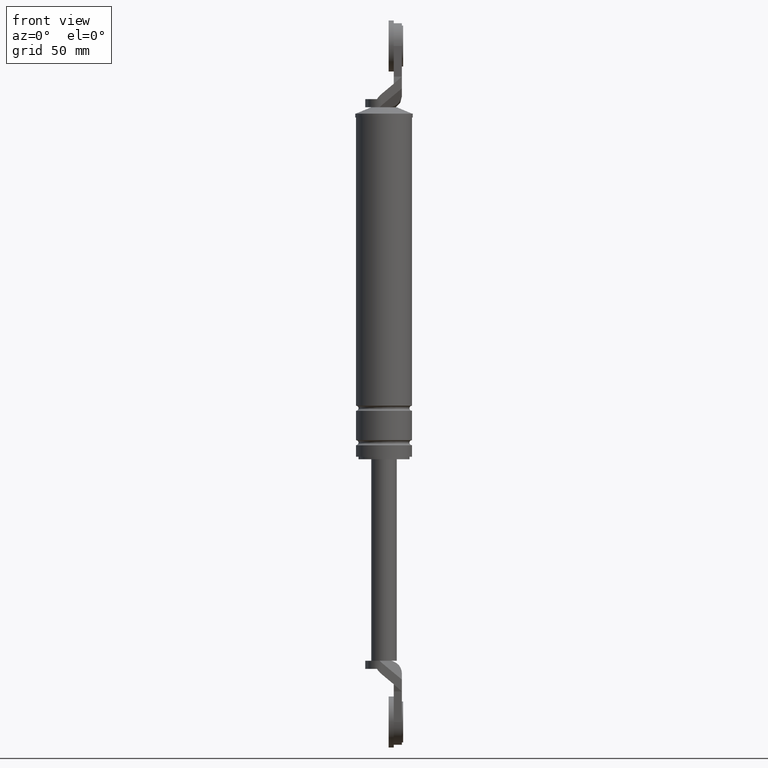
[diagram: clean part render]
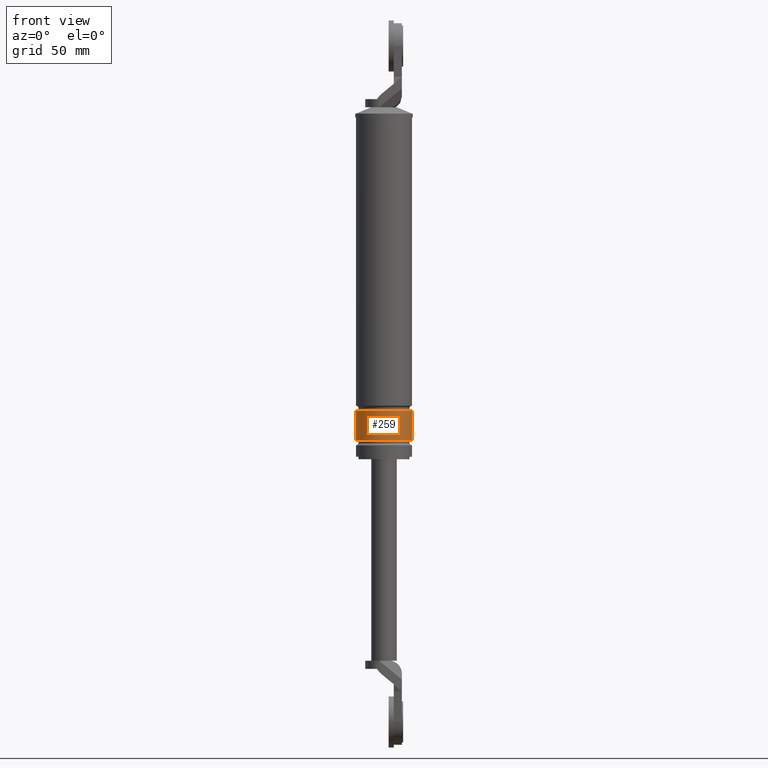
[diagram: same view with one face highlighted and labeled with its STEP entity id]
A machine part, front view. The second image highlights one B-rep face of the part: STEP entity #259.
In plain terms, the highlighted cylindrical surface (edge-blend (fillet) strip) has radius 11 mm, axis along (0, 0, 1).
Its self-contained STEP definition (entity closure, byte-faithful):
#259=ADVANCED_FACE('',(#847),#846,.T.);
#846=CYLINDRICAL_SURFACE('',#1591,1.10000000000E+001);
#847=FACE_OUTER_BOUND('',#1592,.T.);
#1588=CARTESIAN_POINT('',(0.00000000000E+000,3.58204186421E-014,0.00000000000E+000));
#1589=DIRECTION('',(-0.00000000000E+000,-0.00000000000E+000,1.00000000000E+000));
#1590=DIRECTION('',(1.00000000000E+000,0.00000000000E+000,0.00000000000E+000));
#1591=AXIS2_PLACEMENT_3D('',#1588,#1589,#1590);
#1592=EDGE_LOOP('',(#2034,#2035,#2036,#2037));
#2034=ORIENTED_EDGE('',*,*,#2306,.F.);
#2035=ORIENTED_EDGE('',*,*,#2307,.T.);
#2036=ORIENTED_EDGE('',*,*,#2291,.T.);
#2037=ORIENTED_EDGE('',*,*,#2308,.F.);
#2291=EDGE_CURVE('',#3104,#3111,#3124,.T.);
#2306=EDGE_CURVE('',#3199,#3198,#3218,.T.);
#2307=EDGE_CURVE('',#3199,#3104,#3224,.T.);
#2308=EDGE_CURVE('',#3198,#3111,#3230,.T.);
#3104=VERTEX_POINT('',#4161);
#3111=VERTEX_POINT('',#4167);
#3124=CIRCLE('',#4180,1.10000000000E+001);
#3198=VERTEX_POINT('',#4211);
#3199=VERTEX_POINT('',#4212);
#3218=CIRCLE('',#4230,1.10000000000E+001);
#3224=(BOUNDED_CURVE() B_SPLINE_CURVE(1,(#4231,#4232),.UNSPECIFIED.,.F.,.F.) B_SPLINE_CURVE_WITH_KNOTS((2,2),(8.33333343261E-002,9.16666667006E-001),.UNSPECIFIED.) CURVE() GEOMETRIC_REPRESENTATION_ITEM() RATIONAL_B_SPLINE_CURVE((1.00000000000E+000,1.00000000000E+000)) REPRESENTATION_ITEM('') );
#3230=(BOUNDED_CURVE() B_SPLINE_CURVE(1,(#4233,#4234),.UNSPECIFIED.,.F.,.F.) B_SPLINE_CURVE_WITH_KNOTS((2,2),(8.33333333333E-002,9.16666666667E-001),.UNSPECIFIED.) CURVE() GEOMETRIC_REPRESENTATION_ITEM() RATIONAL_B_SPLINE_CURVE((7.50000000000E-001,7.50000000000E-001)) REPRESENTATION_ITEM('') );
#4161=CARTESIAN_POINT('',(1.10000000000E+001,3.61192557345E-014,-3.00000150000E+001));
#4167=CARTESIAN_POINT('',(-1.10000000000E+001,3.58204186421E-014,-3.00000150000E+001));
#4177=CARTESIAN_POINT('',(0.00000000000E+000,3.58204186421E-014,-3.00000150000E+001));
#4178=DIRECTION('',(-0.00000000000E+000,0.00000000000E+000,-1.00000000000E+000));
#4179=DIRECTION('',(-1.00000000000E+000,-1.22460635382E-016,0.00000000000E+000));
#4180=AXIS2_PLACEMENT_3D('',#4177,#4178,#4179);
#4211=CARTESIAN_POINT('',(-1.10000000000E+001,3.58204186421E-014,-4.15000150000E+001));
#4212=CARTESIAN_POINT('',(1.10000000000E+001,3.61192557345E-014,-4.15000150000E+001));
#4227=CARTESIAN_POINT('',(0.00000000000E+000,3.58204186421E-014,-4.15000150000E+001));
#4228=DIRECTION('',(-0.00000000000E+000,0.00000000000E+000,-1.00000000000E+000));
#4229=DIRECTION('',(-1.00000000000E+000,-1.22460635382E-016,0.00000000000E+000));
#4230=AXIS2_PLACEMENT_3D('',#4227,#4228,#4229);
#4231=CARTESIAN_POINT('',(1.10000000000E+001,3.58204186421E-014,-4.15000149863E+001));
#4232=CARTESIAN_POINT('',(1.10000000000E+001,3.58204186421E-014,-3.00000149953E+001));
#4233=CARTESIAN_POINT('',(-1.10000000000E+001,3.55271367880E-014,-4.15000150000E+001));
#4234=CARTESIAN_POINT('',(-1.10000000000E+001,3.55271367880E-014,-3.00000150000E+001));